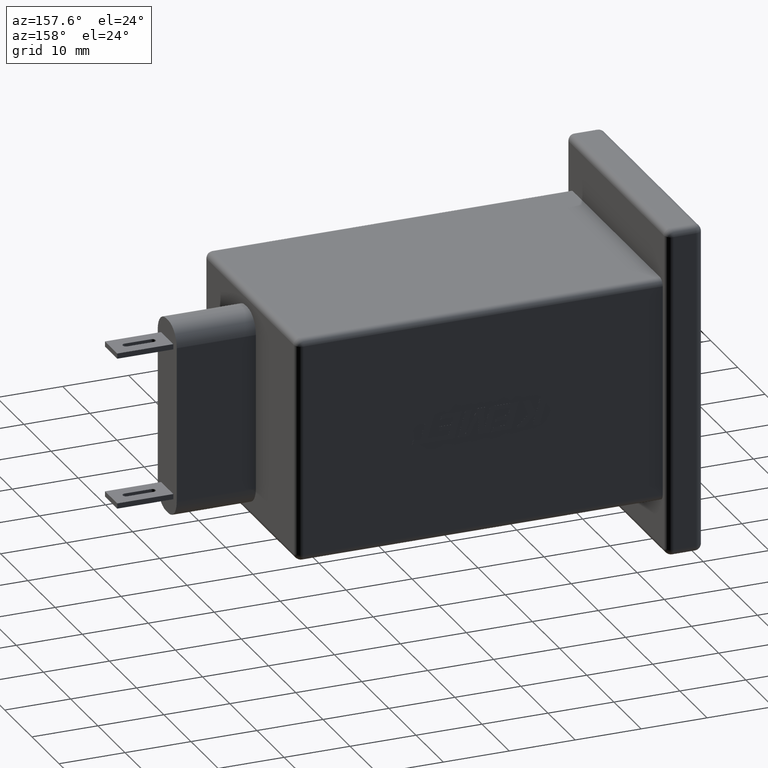
[diagram: clean part render]
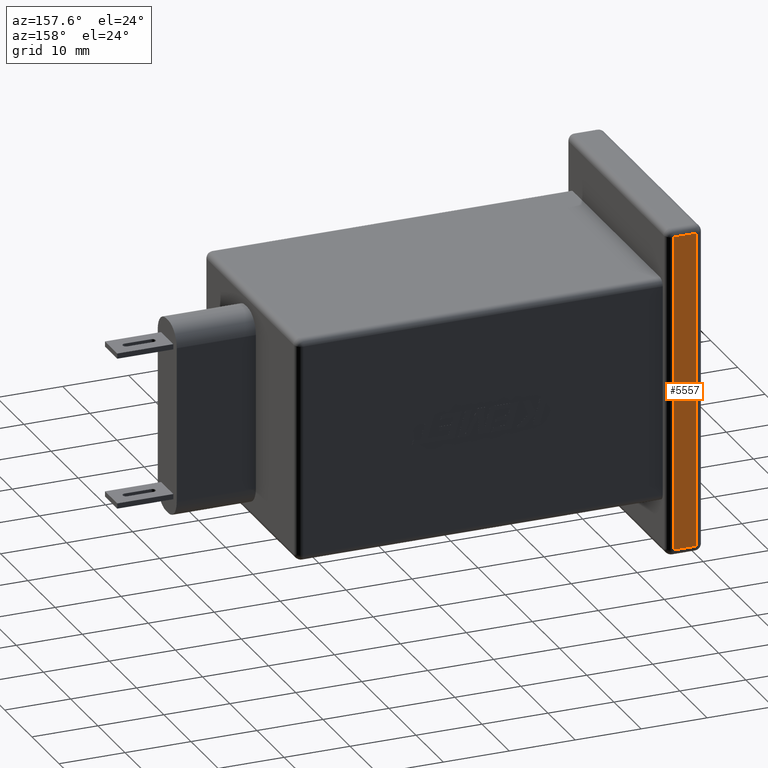
[diagram: same view with one face highlighted and labeled with its STEP entity id]
A machine part, auxiliary view. The second image highlights one B-rep face of the part: STEP entity #5557.
In plain terms, the highlighted planar face has unit normal (0, -1, 0).
Its self-contained STEP definition (entity closure, byte-faithful):
#208 = VECTOR ( 'NONE', #2754, 1000.000000000000000 ) ;
#302 = DIRECTION ( 'NONE',  ( 0.0000000000000000000, -1.000000000000000000, 0.0000000000000000000 ) ) ;
#699 = ORIENTED_EDGE ( 'NONE', *, *, #1958, .T. ) ;
#828 = VERTEX_POINT ( 'NONE', #4227 ) ;
#895 = CARTESIAN_POINT ( 'NONE',  ( 1.000000000000000000, 0.0000000000000000000, 0.9999999999999997800 ) ) ;
#1465 = CARTESIAN_POINT ( 'NONE',  ( 5.500000000000000000, 0.0000000000000000000, 0.0000000000000000000 ) ) ;
#1958 = EDGE_CURVE ( 'NONE', #3315, #6276, #3000, .T. ) ;
#2009 = PLANE ( 'NONE',  #5230 ) ;
#2119 = DIRECTION ( 'NONE',  ( -1.000000000000000000, 0.0000000000000000000, 0.0000000000000000000 ) ) ;
#2294 = ORIENTED_EDGE ( 'NONE', *, *, #2633, .T. ) ;
#2326 = EDGE_LOOP ( 'NONE', ( #699, #2378, #4566, #2294 ) ) ;
#2333 = DIRECTION ( 'NONE',  ( 1.000000000000000000, -0.0000000000000000000, -0.0000000000000000000 ) ) ;
#2378 = ORIENTED_EDGE ( 'NONE', *, *, #6868, .T. ) ;
#2460 = VECTOR ( 'NONE', #3937, 1000.000000000000000 ) ;
#2633 = EDGE_CURVE ( 'NONE', #828, #3315, #4810, .T. ) ;
#2754 = DIRECTION ( 'NONE',  ( -0.0000000000000000000, -0.0000000000000000000, -1.000000000000000000 ) ) ;
#2881 = LINE ( 'NONE', #4950, #2460 ) ;
#3000 = LINE ( 'NONE', #6658, #208 ) ;
#3315 = VERTEX_POINT ( 'NONE', #4503 ) ;
#3533 = EDGE_CURVE ( 'NONE', #6739, #828, #2881, .T. ) ;
#3875 = CARTESIAN_POINT ( 'NONE',  ( 5.500000000000000000, 0.0000000000000000000, 0.9999999999999997800 ) ) ;
#3937 = DIRECTION ( 'NONE',  ( 0.0000000000000000000, 0.0000000000000000000, 1.000000000000000000 ) ) ;
#4227 = CARTESIAN_POINT ( 'NONE',  ( 1.000000000000000000, 0.0000000000000000000, 48.99999999999999300 ) ) ;
#4503 = CARTESIAN_POINT ( 'NONE',  ( 4.500000000000000000, 0.0000000000000000000, 48.99999999999999300 ) ) ;
#4566 = ORIENTED_EDGE ( 'NONE', *, *, #3533, .T. ) ;
#4810 = LINE ( 'NONE', #6173, #6191 ) ;
#4913 = VECTOR ( 'NONE', #2119, 1000.000000000000000 ) ;
#4950 = CARTESIAN_POINT ( 'NONE',  ( 1.000000000000000000, 0.0000000000000000000, 49.99999999999999300 ) ) ;
#5230 = AXIS2_PLACEMENT_3D ( 'NONE', #1465, #302, #5890 ) ;
#5363 = CARTESIAN_POINT ( 'NONE',  ( 4.500000000000000000, 0.0000000000000000000, 0.9999999999999997800 ) ) ;
#5557 = ADVANCED_FACE ( 'NONE', ( #5822 ), #2009, .F. ) ;
#5703 = LINE ( 'NONE', #3875, #4913 ) ;
#5822 = FACE_OUTER_BOUND ( 'NONE', #2326, .T. ) ;
#5890 = DIRECTION ( 'NONE',  ( 0.0000000000000000000, -0.0000000000000000000, -1.000000000000000000 ) ) ;
#6173 = CARTESIAN_POINT ( 'NONE',  ( 5.500000000000000000, 0.0000000000000000000, 48.99999999999999300 ) ) ;
#6191 = VECTOR ( 'NONE', #2333, 1000.000000000000000 ) ;
#6276 = VERTEX_POINT ( 'NONE', #5363 ) ;
#6658 = CARTESIAN_POINT ( 'NONE',  ( 4.500000000000000000, 0.0000000000000000000, 0.0000000000000000000 ) ) ;
#6739 = VERTEX_POINT ( 'NONE', #895 ) ;
#6868 = EDGE_CURVE ( 'NONE', #6276, #6739, #5703, .T. ) ;